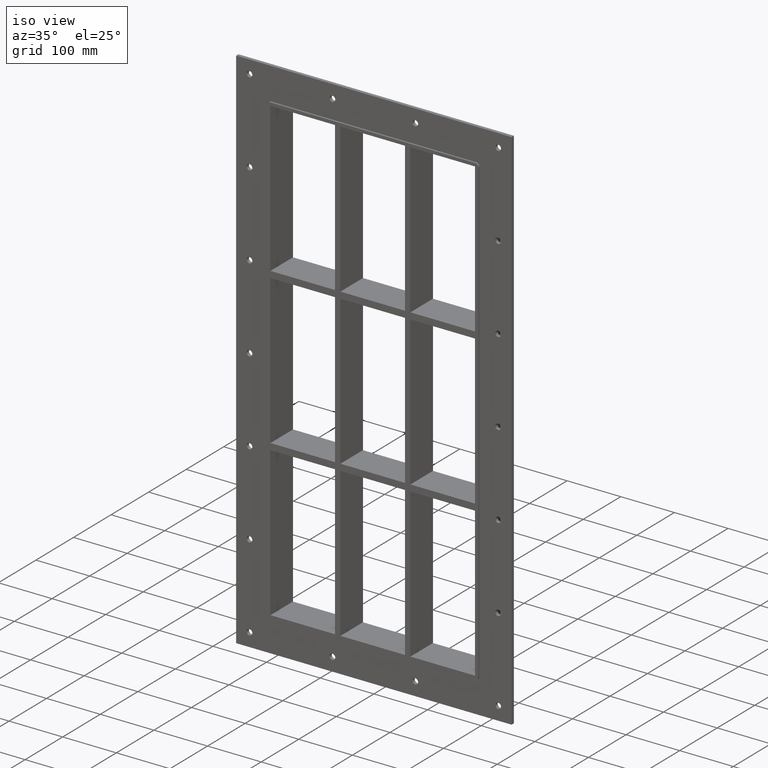
[diagram: clean part render]
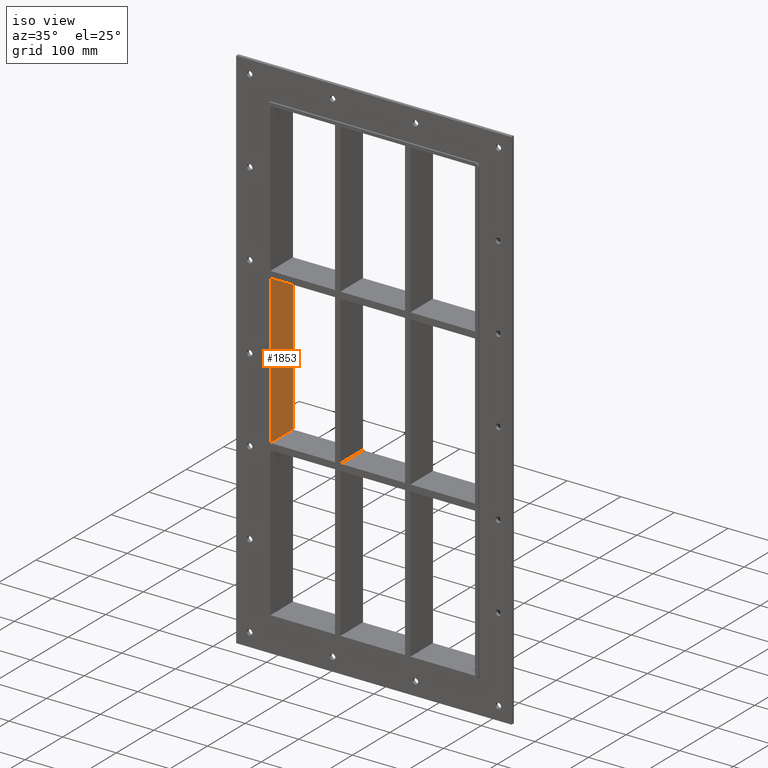
[diagram: same view with one face highlighted and labeled with its STEP entity id]
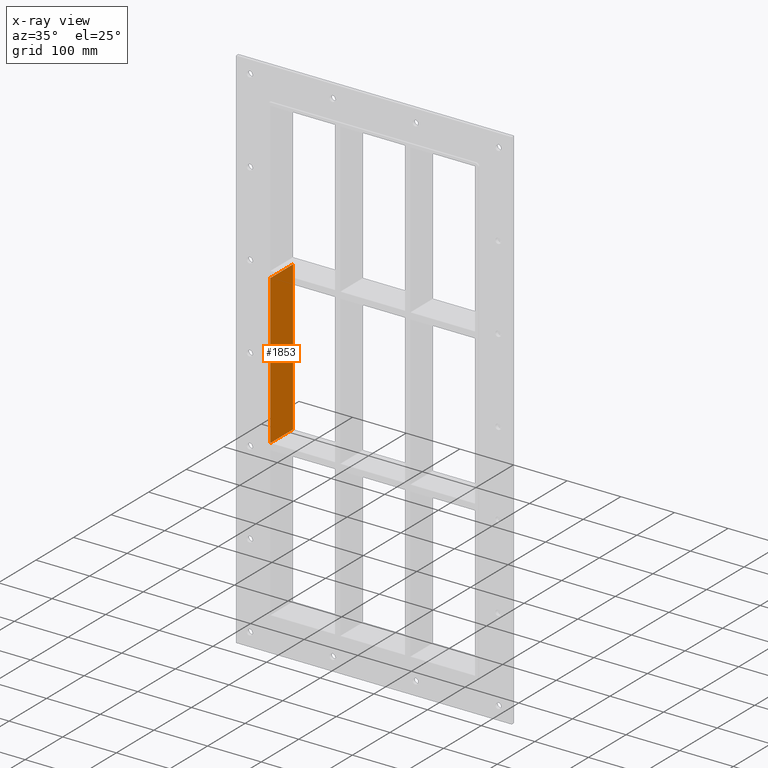
[diagram: x-ray of the same camera — body ghosted, the highlighted face saturated]
A machine part, iso view. The second image highlights one B-rep face of the part: STEP entity #1853.
The next image is the same camera in x-ray: the body ghosted, the highlighted face saturated — about 0% of this face is hidden behind the body in this view.
In plain terms, the highlighted planar face has unit normal (-1, 0, 0).
Its self-contained STEP definition (entity closure, byte-faithful):
#587=CARTESIAN_POINT('',(-190.75000000000045,-3.0,138.99999999998983));
#588=VERTEX_POINT('',#587);
#595=CARTESIAN_POINT('',(-190.75000000000045,57.0,138.99999999998983));
#596=VERTEX_POINT('',#595);
#597=CARTESIAN_POINT('',(-190.75000000000003,57.000000000000007,138.99999999998983));
#598=DIRECTION('',(0.0,-1.0,0.0));
#599=VECTOR('',#598,60.000000000000007);
#600=LINE('',#597,#599);
#601=EDGE_CURVE('',#596,#588,#600,.T.);
#1135=CARTESIAN_POINT('',(-190.75000000000045,57.0,-139.00000000000006));
#1136=VERTEX_POINT('',#1135);
#1137=CARTESIAN_POINT('',(-190.75000000000003,57.0,138.99999999998985));
#1138=DIRECTION('',(0.0,0.0,-1.0));
#1139=VECTOR('',#1138,277.99999999998988);
#1140=LINE('',#1137,#1139);
#1141=EDGE_CURVE('',#596,#1136,#1140,.T.);
#1618=CARTESIAN_POINT('',(-190.75000000000045,-3.0,-139.00000000000006));
#1619=VERTEX_POINT('',#1618);
#1626=CARTESIAN_POINT('',(-190.75000000000003,-3.0,-139.00000000000006));
#1627=DIRECTION('',(0.0,0.0,1.0));
#1628=VECTOR('',#1627,277.99999999998988);
#1629=LINE('',#1626,#1628);
#1630=EDGE_CURVE('',#1619,#588,#1629,.T.);
#1832=CARTESIAN_POINT('',(-190.75000000000003,-3.0,-139.00000000000006));
#1833=DIRECTION('',(0.0,1.0,0.0));
#1834=VECTOR('',#1833,60.000000000000007);
#1835=LINE('',#1832,#1834);
#1836=EDGE_CURVE('',#1619,#1136,#1835,.T.);
#1842=CARTESIAN_POINT('',(-190.75000000000003,0.0,-429.00000000000006));
#1843=DIRECTION('',(-1.0,0.0,0.0));
#1844=DIRECTION('',(0.0,0.0,1.0));
#1845=AXIS2_PLACEMENT_3D('',#1842,#1843,#1844);
#1846=PLANE('',#1845);
#1847=ORIENTED_EDGE('',*,*,#601,.T.);
#1848=ORIENTED_EDGE('',*,*,#1630,.F.);
#1849=ORIENTED_EDGE('',*,*,#1836,.T.);
#1850=ORIENTED_EDGE('',*,*,#1141,.F.);
#1851=EDGE_LOOP('',(#1847,#1848,#1849,#1850));
#1852=FACE_OUTER_BOUND('',#1851,.T.);
#1853=ADVANCED_FACE('',(#1852),#1846,.F.);